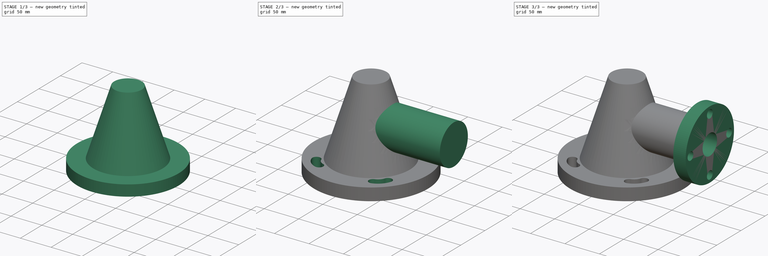
[diagram: build sequence overview — one tinted view per stage of 3, left to right]
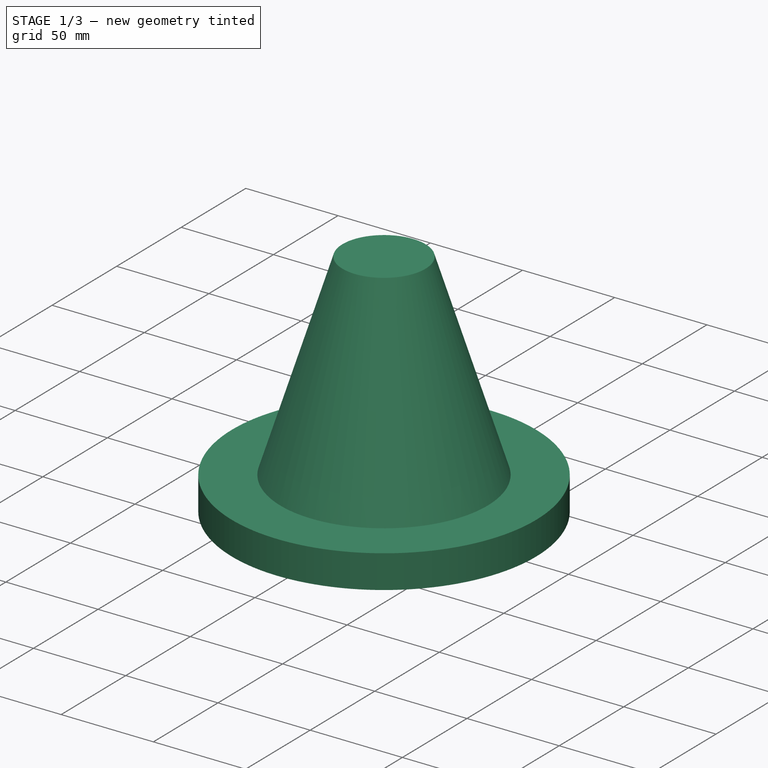
[diagram: stage 1 of 3 — iso view after this stage's code; geometry added in this stage tinted green]
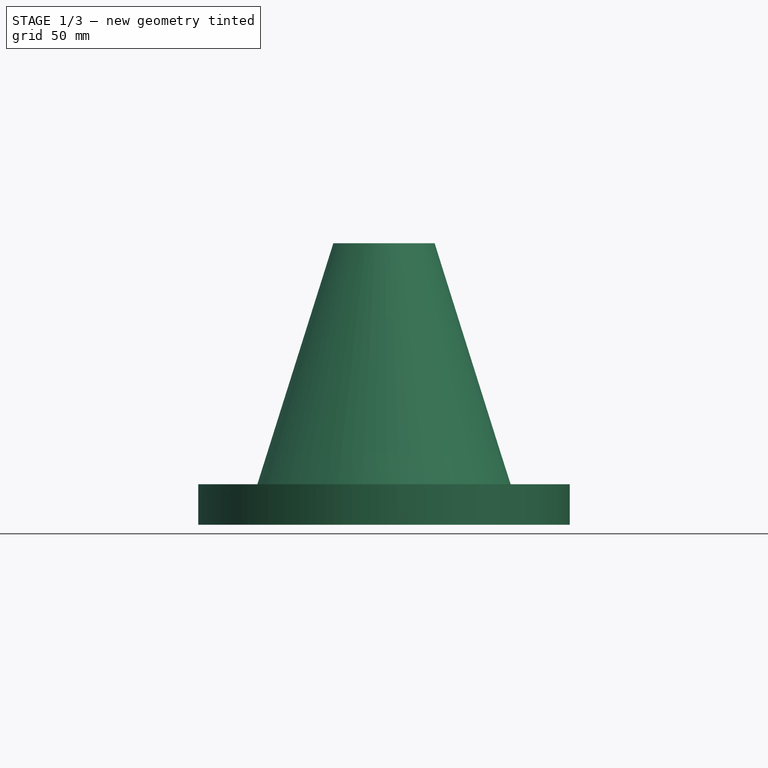
[diagram: stage 1 of 3 — front view after this stage's code; geometry added in this stage tinted green]
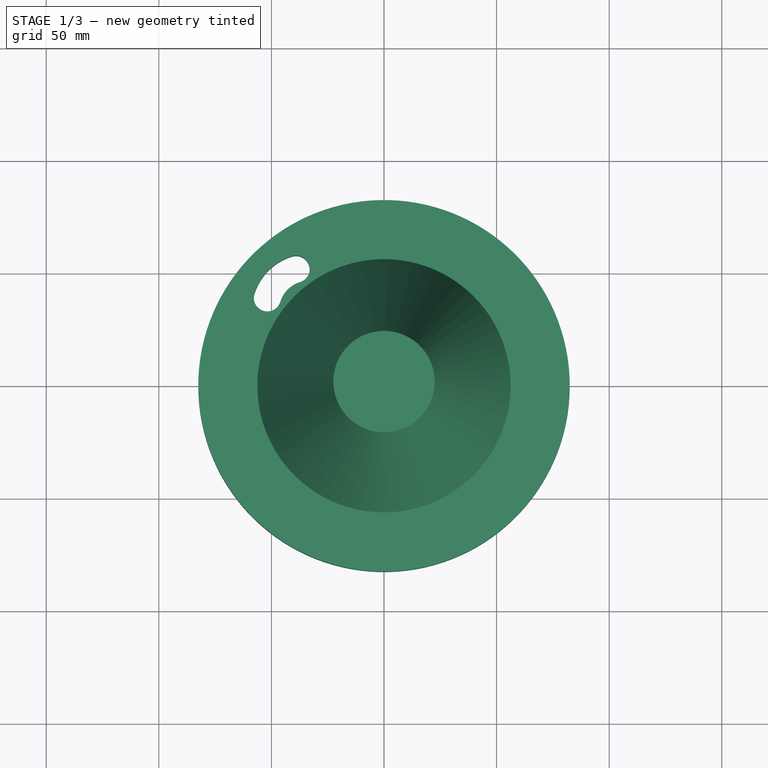
[diagram: stage 1 of 3 — top view after this stage's code; geometry added in this stage tinted green]
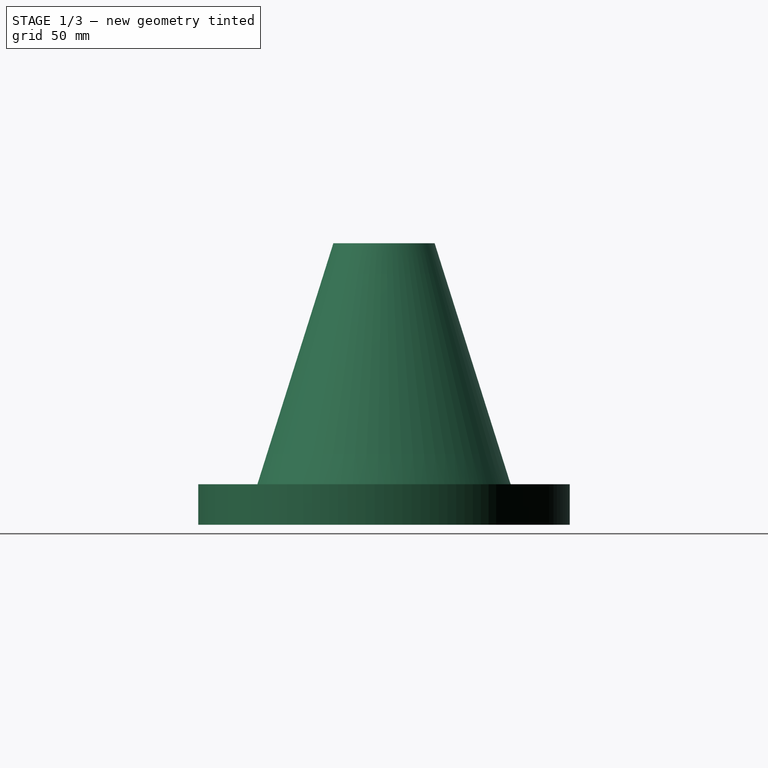
[diagram: stage 1 of 3 — right view after this stage's code; geometry added in this stage tinted green]
FCSTD DOCUMENT  (FreeCAD 1.1R42180 (Git))
Label: 24WC-01-Flandged_Cap
License: Creative Commons Attribution-NonCommercial-ShareAlike 4.0
LicenseURL: https://creativecommons.org/licenses/by-nc-sa/4.0/
objects: Sketcher::SketchObject×4, PartDesign::Pocket×2, PartDesign::Pad×2, App::Point×1, PartDesign::Revolution×1, PartDesign::PolarPattern×1, PartDesign::Body×1
note: 26 computed .brp shape members not serialized (recipe doc carries the construction recipe); baked Part::Feature solids carry a one-line shape summary decoded from their .brp

FEATURE [App::Point] Origin001  label="Origine"
  Role = Origin
FEATURE [Sketcher::SketchObject] Sketch
  ArcFitTolerance = 1e-06
  AttachmentSupport = -> [Origin]
  ExternalTypes = [0]
  FullyConstrained = true
  MakeInternals = false
  MapMode = 5
  Placement = pos=(0,0,0) rot=(1,0,0;1.5708rad)
  expr: Constraints[16] = 45 / 2
  expr: Constraints[21] = 35 / 2
  expr: Constraints[22] = 165 / 2
  sketch-geometry (8):
    g0: LineSegment StartX=-82.5 StartY=0 StartZ=0 EndX=-82.5 EndY=18 EndZ=0
    g1: LineSegment StartX=-82.5 StartY=18 StartZ=0 EndX=-56.237 EndY=18 EndZ=0
    g2: LineSegment StartX=-56.237 StartY=18 StartZ=0 EndX=-22.5 EndY=125 EndZ=0
    g3: LineSegment StartX=-22.5 StartY=125 StartZ=0 EndX=0 EndY=125 EndZ=0
    g4: LineSegment StartX=0 StartY=125 StartZ=0 EndX=0 EndY=111 EndZ=0
    g5: LineSegment StartX=0 StartY=111 StartZ=0 EndX=-12.2348 EndY=111 EndZ=0
    g6: LineSegment StartX=-12.2348 StartY=111 StartZ=0 EndX=-47.2329 EndY=0 EndZ=0
    g7: LineSegment StartX=-47.2329 StartY=0 StartZ=0 EndX=-82.5 EndY=0 EndZ=0
  constraints (24):
    c: PointOnObject(g0,g-1)
    c: Vertical(g0)
    c: Coincident(g0,g1)
    c: Horizontal(g1)
    c: Coincident(g1,g2)
    c: Coincident(g2,g3)
    c: Horizontal(g3)
    c: Coincident(g3,g4)
    c: Vertical(g4)
    c: Coincident(g4,g5)
    c: Horizontal(g5)
    c: Coincident(g5,g6)
    c: PointOnObject(g7,g-1)
    c: Coincident(g7,g0)
    c: Parallel(g6,g2)
    c: Distance(g4,g4) = 14
    c: DistanceX(g3,g3) = 22.5
    c: PointOnObject(g4,g-2)
    c: Distance(g5,g2) = 14
    c: Distance(g0,g0) = 18
    c: Coincident(g7,g6)
    c: Angle(g6,g-2) = 0.305433
    c: DistanceX(g0,g-1) = 82.5
    c: Distance(g3,g-1) = 125
FEATURE [PartDesign::Revolution] Revolution
  Angle = 360
  Angle2 = 60
  Axis = (0,2e-16,1)
  Base = (0,0,0)
  Profile = -> Sketch
  ReferenceAxis = -> Sketch [V_Axis]
  Refine = true
  Suppressed = false
  Type = 0
FEATURE [Sketcher::SketchObject] Sketch001
  ArcFitTolerance = 1e-06
  AttachmentSupport = -> [Origin]
  ExternalGeometry = -> [Revolution]
  ExternalTypes = [0,0]
  FullyConstrained = true
  MakeInternals = false
  MapMode = 5
  sketch-geometry (9):
    g0: ArcOfCircle CenterX=-33.3987 CenterY=33.3987 CenterZ=0 NormalX=0 NormalY=0 NormalZ=1 AngleXU=0 Radius=25.2503 StartAngle=1.86808 EndAngle=2.84431
    g1: ArcOfCircle CenterX=-51.8047 CenterY=39.0376 CenterZ=0 NormalX=0 NormalY=0 NormalZ=1 AngleXU=0 Radius=6 StartAngle=2.84431 EndAngle=5.9859
    g2: ArcOfCircle CenterX=-39.0376 CenterY=51.8047 CenterZ=0 NormalX=0 NormalY=0 NormalZ=1 AngleXU=0 Radius=6 StartAngle=5.00967 EndAngle=8.15126
    g3: ArcOfCircle CenterX=-33.3987 CenterY=33.3987 CenterZ=0 NormalX=0 NormalY=0 NormalZ=1 AngleXU=0 Radius=13.2503 StartAngle=1.86808 EndAngle=2.84431
    g4: LineSegment [constr] StartX=-58.3363 StartY=58.3363 StartZ=0 EndX=-33.3987 EndY=33.3987 EndZ=0
    g5: GeomPoint [constr] X=-45.8675 Y=45.8675 Z=0
    g6: ArcOfCircle [constr] CenterX=0 CenterY=0 CenterZ=0 NormalX=0 NormalY=0 NormalZ=1 AngleXU=0 Radius=64.8665 StartAngle=2.21657 EndAngle=2.49582
    g7: LineSegment [constr] StartX=-39.0376 StartY=51.8047 StartZ=0 EndX=0 EndY=0 EndZ=0
    g8: LineSegment [constr] StartX=0 StartY=0 StartZ=0 EndX=-51.8047 EndY=39.0376 EndZ=0
  constraints (21):
    c: Coincident(g0,g3)
    c: Tangent(g3,g2) = 1.5708
    c: Tangent(g3,g1) = 1.5708
    c: Tangent(g0,g2) = -1.5708
    c: Tangent(g0,g1) = -1.5708
    c: Radius(g2) = 6
    c: Coincident(g4,g0)
    c: Angle(g-2,g4) = 0.785398
    c: PointOnObject(g4,g-4)
    c: PointOnObject(g0,g-3)
    c: PointOnObject(g-1,g4)
    c: Symmetric(g4,g4,g5)
    c: Coincident(g6,g-1)
    c: Coincident(g6,g1)
    c: Coincident(g6,g2)
    c: PointOnObject(g5,g6)
    c: Coincident(g7,g2)
    c: Coincident(g7,g6)
    c: Coincident(g8,g6)
    c: Coincident(g8,g1)
    c: Angle(g7,g8) = 0.279253
FEATURE [PartDesign::Pocket] Pocket
  BaseFeature = -> Revolution
  Direction = (0,0,-1)
  Length = 5
  Length2 = 5
  Profile = -> Sketch001
  ReferenceAxis = -> Sketch001 [N_Axis]
  Refine = true
  Reversed = true
  Suppressed = false
  Type = 1
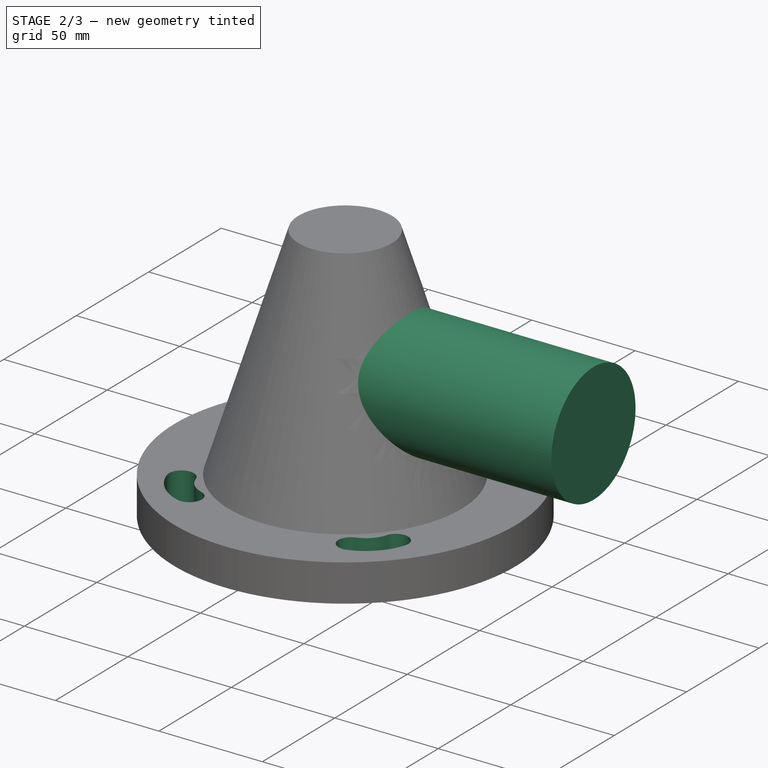
[diagram: stage 2 of 3 — iso view after this stage's code; geometry added in this stage tinted green]
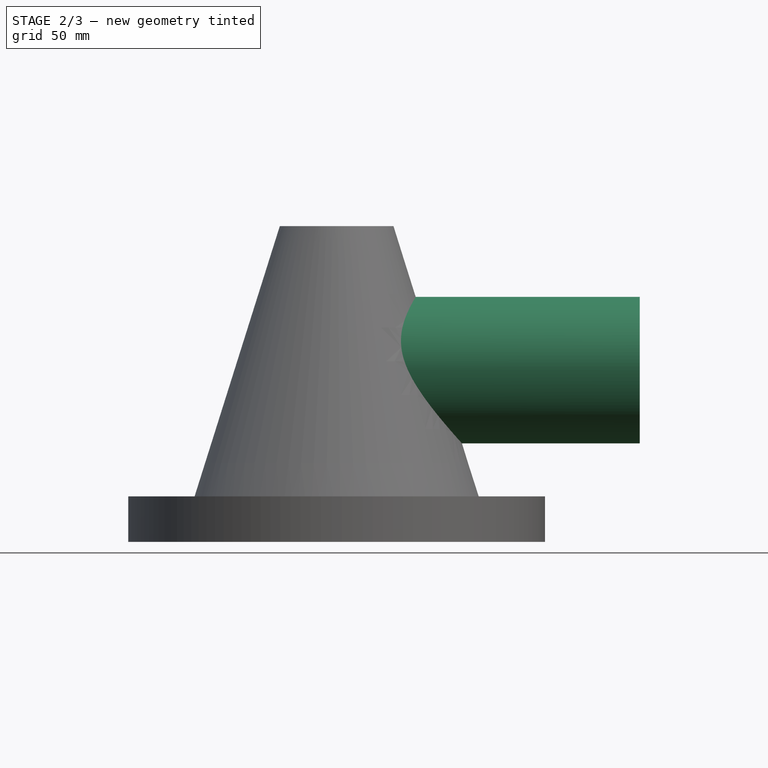
[diagram: stage 2 of 3 — front view after this stage's code; geometry added in this stage tinted green]
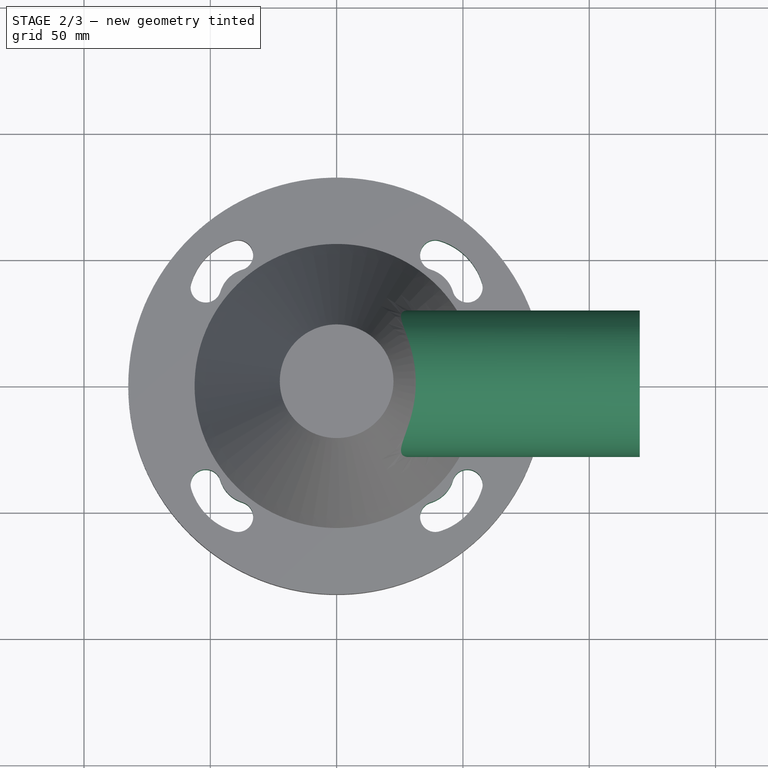
[diagram: stage 2 of 3 — top view after this stage's code; geometry added in this stage tinted green]
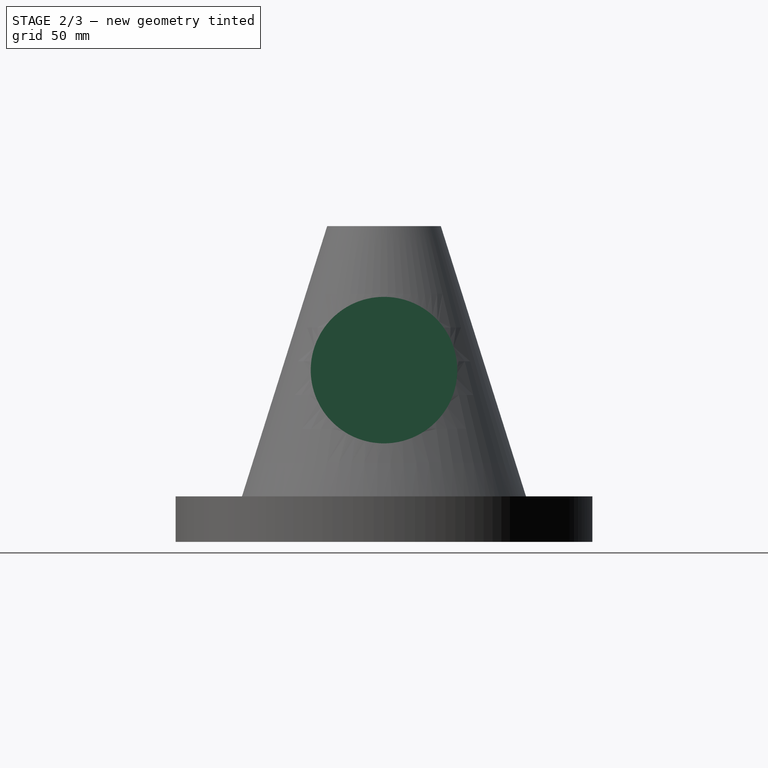
[diagram: stage 2 of 3 — right view after this stage's code; geometry added in this stage tinted green]
FEATURE [PartDesign::PolarPattern] PolarPattern
  Angle = 360
  Axis = -> Sketch001 [N_Axis]
  BaseFeature = -> Pocket
  Mode = 0
  Occurrences = 4
  Offset = 120
  Originals = -> [Pocket]
  Refine = true
  Suppressed = false
  TransformMode = 0
FEATURE [Sketcher::SketchObject] Sketch002
  ArcFitTolerance = 1e-06
  AttachmentOffset = pos=(0,0,120) rot=(0,0,1;0rad)
  AttachmentSupport = -> [Origin]
  ExternalTypes = [0]
  FullyConstrained = true
  MakeInternals = false
  MapMode = 5
  Placement = pos=(120,0,0) rot=(0.57735,0.57735,0.57735;2.0944rad)
  sketch-geometry (2):
    g0: Circle CenterX=0 CenterY=68 CenterZ=0 NormalX=0 NormalY=0 NormalZ=1 AngleXU=0 Radius=15
    g1: Circle CenterX=0 CenterY=68 CenterZ=0 NormalX=0 NormalY=0 NormalZ=1 AngleXU=0 Radius=29
  constraints (5):
    c: PointOnObject(g0,g-2)
    c: Coincident(g1,g0)
    c: Diameter(g0) = 30
    c: Distance(g1,g0) = 14
    c: Distance(g0,g-1) = 68
FEATURE [PartDesign::Pad] Pad
  BaseFeature = -> PolarPattern
  Direction = (1,0,0)
  Length = 10
  Length2 = 10
  Profile = -> Sketch002 [Edge2]
  ReferenceAxis = -> Sketch002 [N_Axis]
  Refine = true
  Reversed = true
  Suppressed = false
  Type = 2
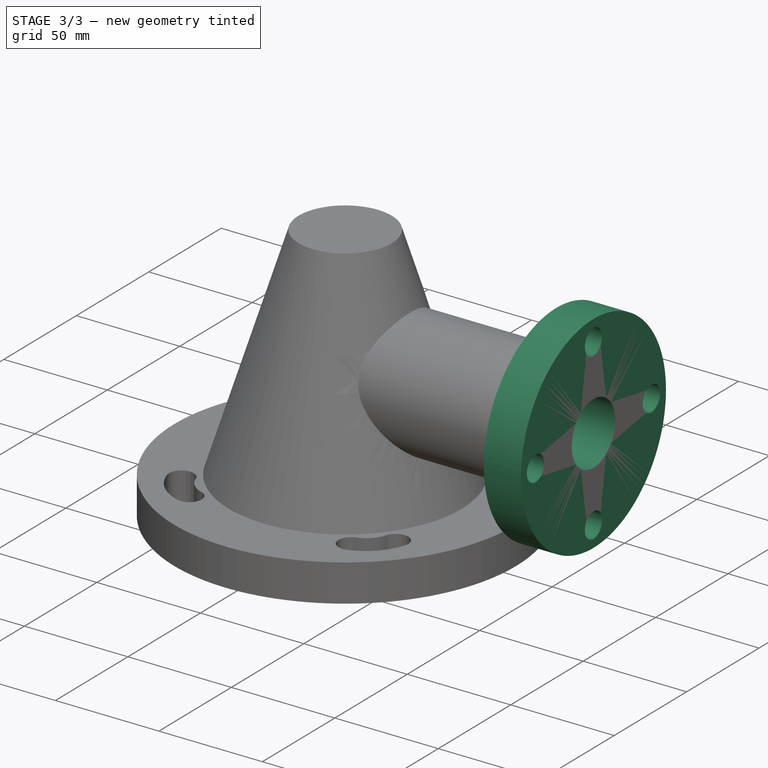
[diagram: stage 3 of 3 — iso view after this stage's code; geometry added in this stage tinted green]
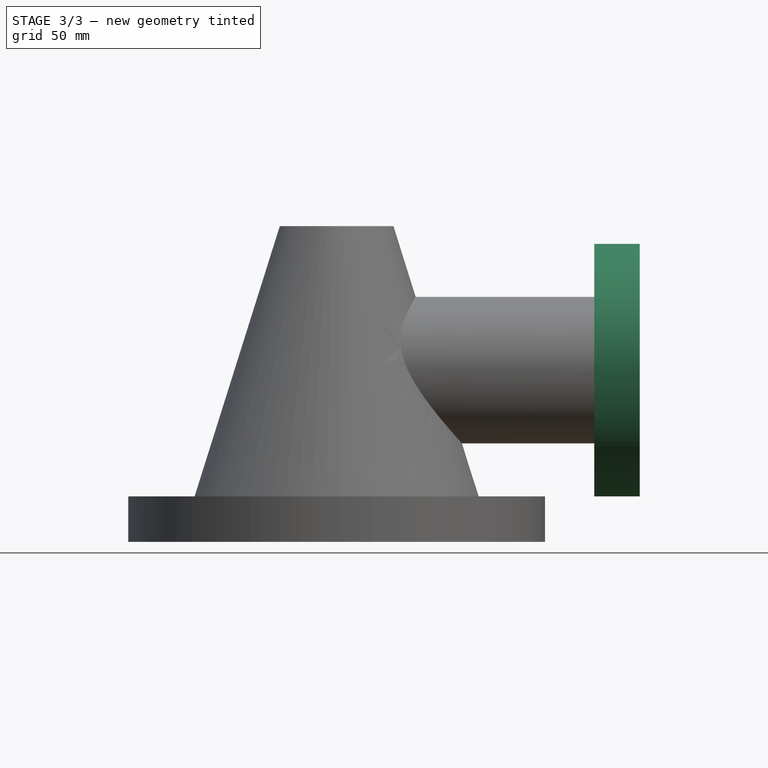
[diagram: stage 3 of 3 — front view after this stage's code; geometry added in this stage tinted green]
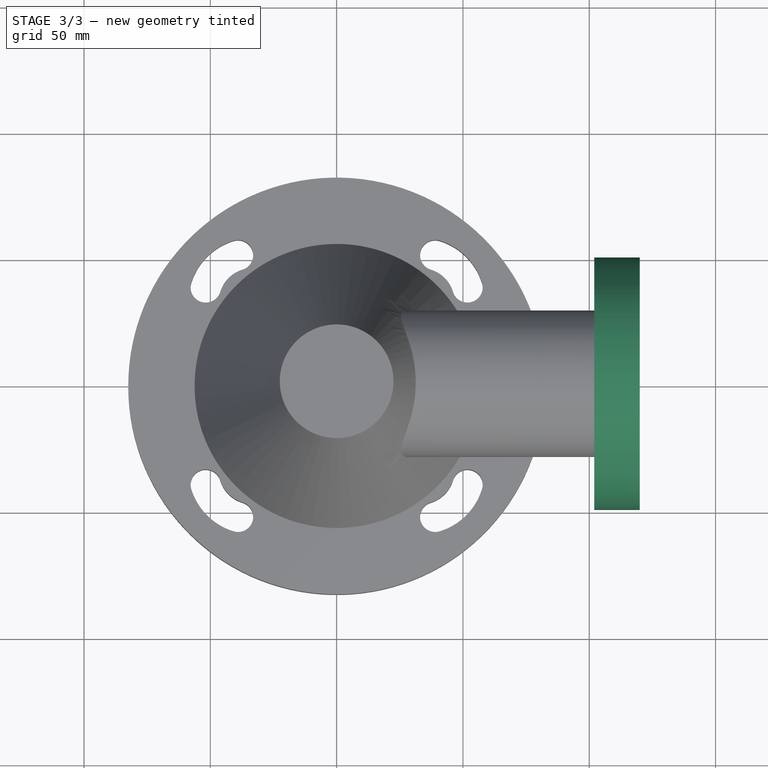
[diagram: stage 3 of 3 — top view after this stage's code; geometry added in this stage tinted green]
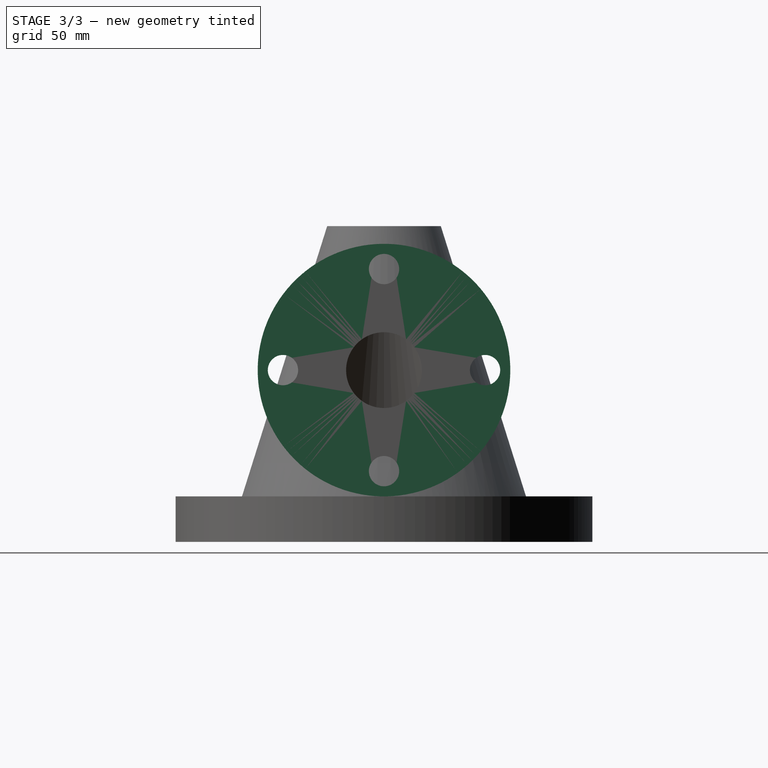
[diagram: stage 3 of 3 — right view after this stage's code; geometry added in this stage tinted green]
FEATURE [PartDesign::Pocket] Pocket001
  BaseFeature = -> Pad
  Direction = (-1,0,0)
  Length = 5
  Length2 = 5
  Profile = -> Sketch002 [Edge1]
  ReferenceAxis = -> Sketch002 [N_Axis]
  Refine = true
  Suppressed = false
  Type = 2
FEATURE [Sketcher::SketchObject] Sketch003
  ArcFitTolerance = 1e-06
  AttachmentSupport = -> [Pocket001]
  ExternalGeometry = -> [Pocket001]
  ExternalTypes = [0]
  FullyConstrained = true
  MakeInternals = false
  MapMode = 5
  Placement = pos=(120,0,0) rot=(0.57735,0.57735,0.57735;2.0944rad)
  sketch-geometry (6):
    g0: Circle CenterX=0 CenterY=68 CenterZ=0 NormalX=0 NormalY=0 NormalZ=1 AngleXU=0 Radius=50
    g1: Circle [constr] CenterX=0 CenterY=68 CenterZ=0 NormalX=0 NormalY=0 NormalZ=1 AngleXU=0 Radius=40
    g2: Circle CenterX=0 CenterY=108 CenterZ=0 NormalX=0 NormalY=0 NormalZ=1 AngleXU=0 Radius=6
    g3: Circle CenterX=-40 CenterY=68 CenterZ=0 NormalX=0 NormalY=0 NormalZ=1 AngleXU=0 Radius=6
    g4: Circle CenterX=0 CenterY=28 CenterZ=0 NormalX=0 NormalY=0 NormalZ=1 AngleXU=0 Radius=6
    g5: Circle CenterX=40 CenterY=68 CenterZ=0 NormalX=0 NormalY=0 NormalZ=1 AngleXU=0 Radius=6
  constraints (16):
    c: Diameter(g0) = 100
    c: Coincident(g0,g-3)
    c: Diameter(g1) = 80
    c: Coincident(g1,g0)
    c: PointOnObject(g3,g1)
    c: PointOnObject(g5,g1)
    c: Horizontal(g5,g0)
    c: Horizontal(g0,g3)
    c: Equal(g4,g5)
    c: Equal(g5,g3)
    c: Equal(g3,g2)
    c: PointOnObject(g2,g1)
    c: Diameter(g2) = 12
    c: Vertical(g2,g0)
    c: Vertical(g0,g4)
    c: PointOnObject(g4,g1)
FEATURE [PartDesign::Pad] Pad001
  BaseFeature = -> Pocket001
  Direction = (1,0,0)
  Length = 18
  Length2 = 10
  Profile = -> Sketch003
  ReferenceAxis = -> Sketch003 [N_Axis]
  Refine = true
  Reversed = true
  Suppressed = false
  Type = 0
FEATURE [PartDesign::Body] Body  label="Corps"
  AllowCompound = true
  Group = -> [Sketch,Revolution,Sketch001,Pocket,PolarPattern,Sketch002,Pad,Pocket001,Sketch003,Pad001]
  Origin = -> Origin
  Tip = -> Pad001
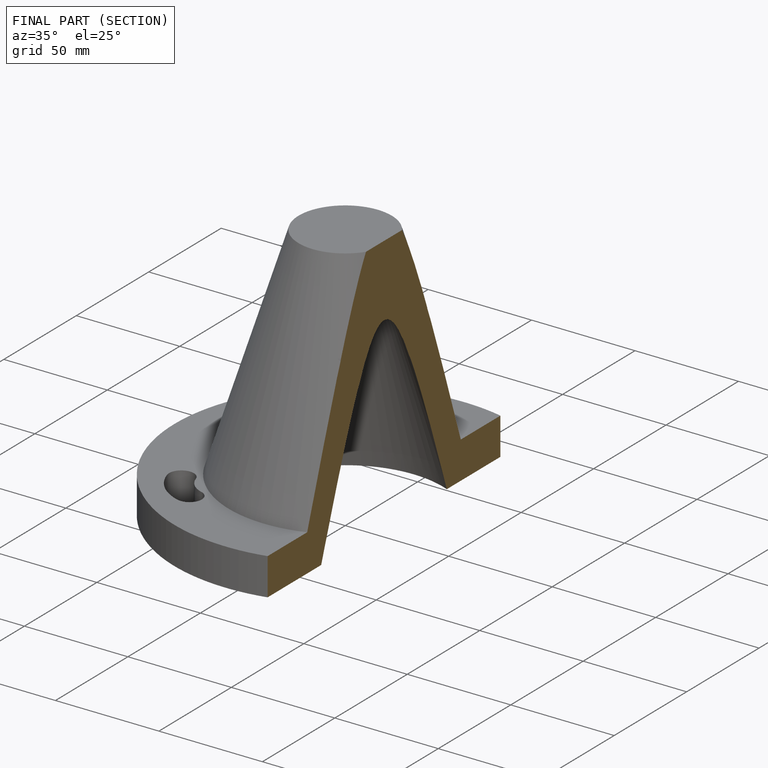
[diagram: finished part — half-section view (interior)]
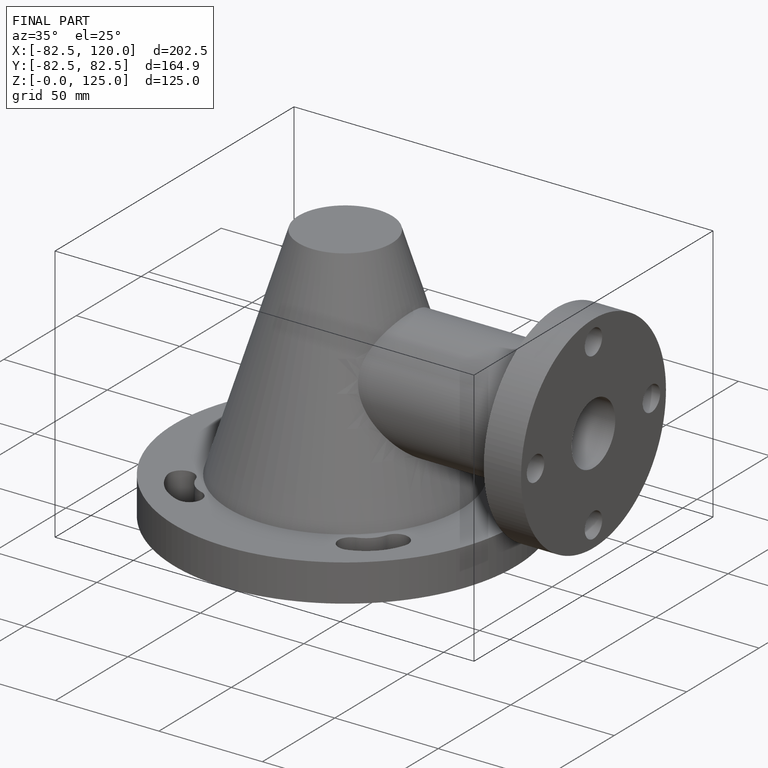
[diagram: finished part — iso view with bounding-box wireframe]
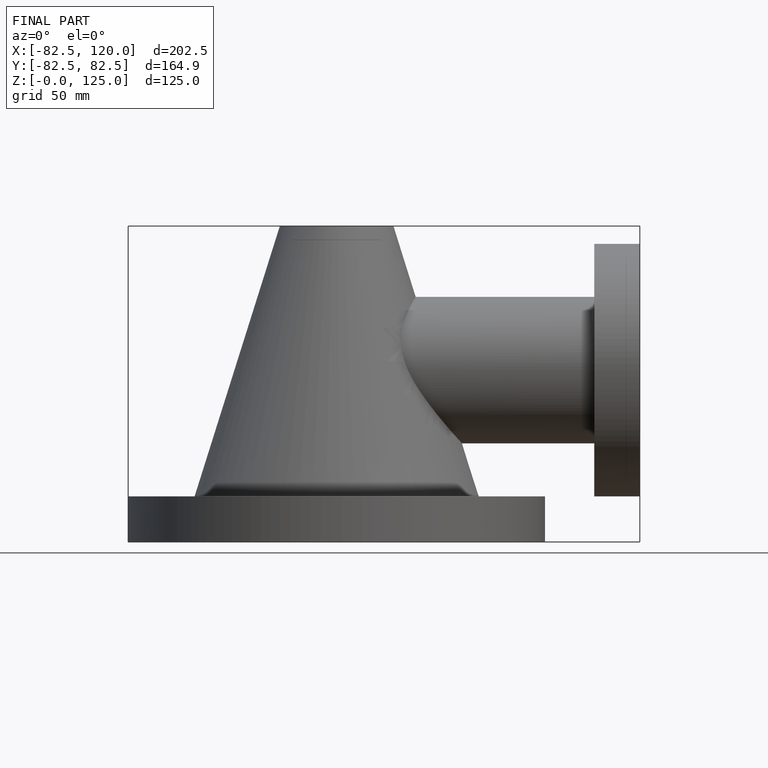
[diagram: finished part — front view with bounding-box wireframe]
